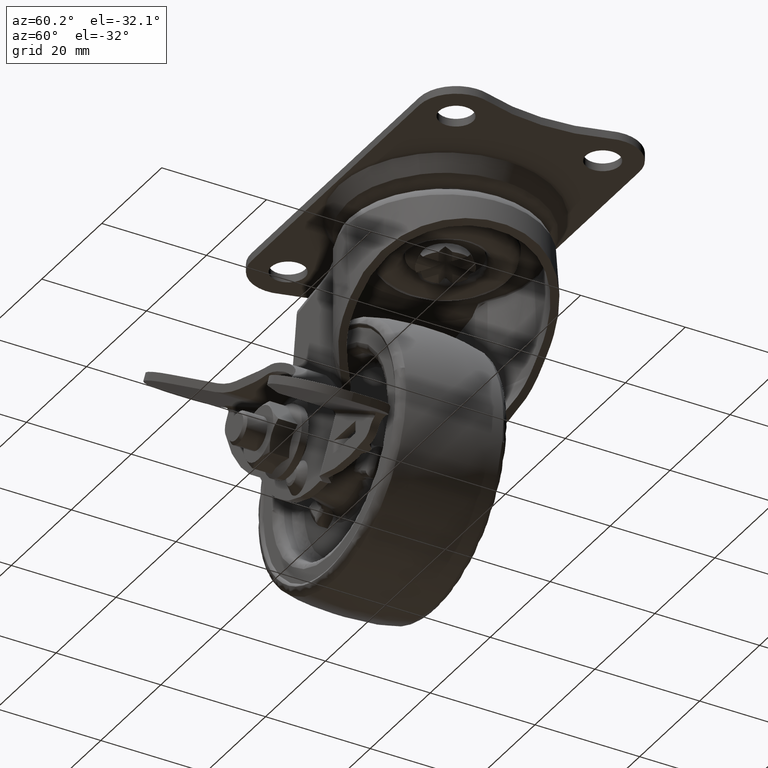
[diagram: clean part render]
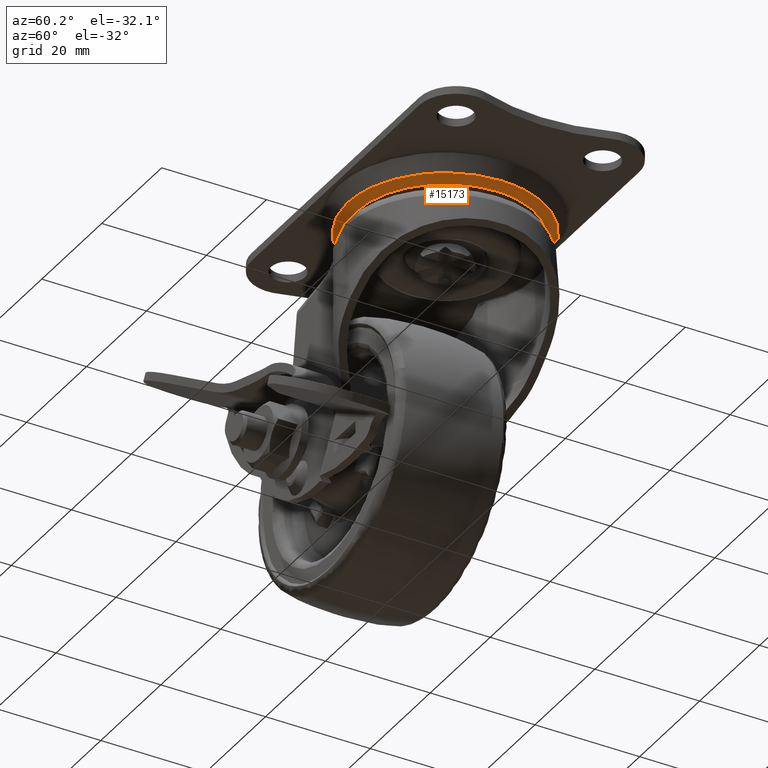
[diagram: same view with one face highlighted and labeled with its STEP entity id]
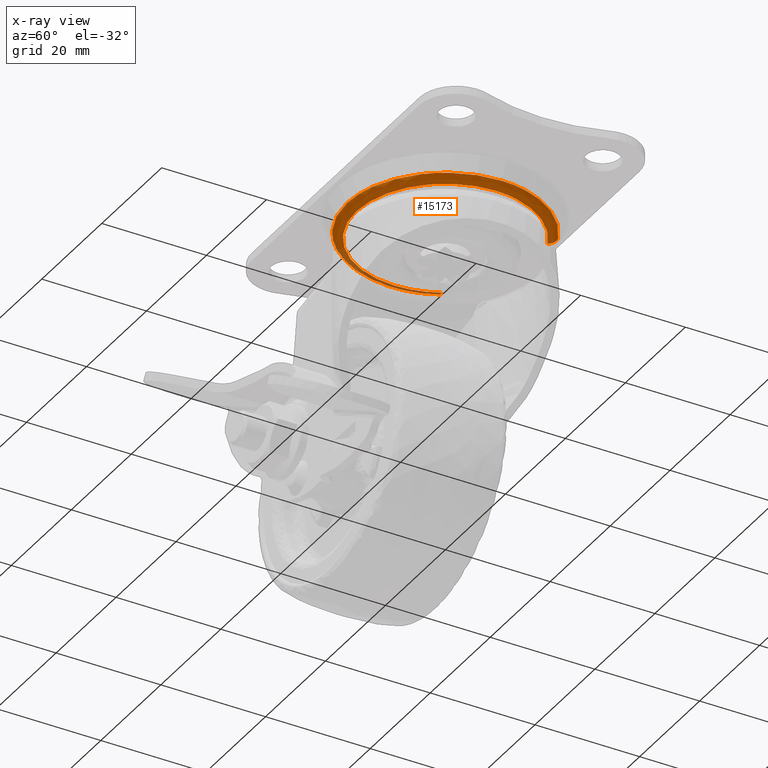
[diagram: x-ray of the same camera — body ghosted, the highlighted face saturated]
A machine part, auxiliary view. The second image highlights one B-rep face of the part: STEP entity #15173.
The next image is the same camera in x-ray: the body ghosted, the highlighted face saturated — about 5% of this face is hidden behind the body in this view.
In plain terms, the highlighted face is a freeform B-spline surface patch.
Its self-contained STEP definition (entity closure, byte-faithful):
#11078=CARTESIAN_POINT('',(-13.446668179705361,-13.086058546007839,-3.243997071950652));
#11079=VERTEX_POINT('',#11078);
#11085=CARTESIAN_POINT('',(-0.000001753686267,-18.763203172549570,-3.243997254316575));
#11086=VERTEX_POINT('',#11085);
#11087=CARTESIAN_POINT('',(-0.000001753686267,-18.763203172549570,-3.243997254316575));
#11088=CARTESIAN_POINT('',(-1.288364051509951,-18.763411241258918,-3.243997236843600));
#11089=CARTESIAN_POINT('',(-3.240293101756210,-18.561301306233851,-3.243997210371199));
#11090=CARTESIAN_POINT('',(-6.112442103431523,-17.800195733370568,-3.243997171418657));
#11091=CARTESIAN_POINT('',(-8.355555626021957,-16.869624756788891,-3.243997140997160));
#11092=CARTESIAN_POINT('',(-10.981840301737630,-15.317714932310031,-3.243997105379060));
#11093=CARTESIAN_POINT('',(-12.548280324266820,-14.009517620238260,-3.243997084134728));
#11094=CARTESIAN_POINT('',(-13.446668179705361,-13.086058546007839,-3.243997071950652));
#11095=B_SPLINE_CURVE_WITH_KNOTS('',3,(#11087,#11088,#11089,#11090,#11091,#11092,#11093,#11094),.UNSPECIFIED.,.F.,.U.,(4,1,1,1,1,4),(0.000000021748560,3.865023599977977,5.856102761578656,8.901263083076529,11.126581826376629,14.991605469402741),.UNSPECIFIED.);
#11096=EDGE_CURVE('',#11086,#11079,#11095,.T.);
#11098=CARTESIAN_POINT('',(13.833684071338419,-12.676235966075639,-3.243997436055670));
#11099=VERTEX_POINT('',#11098);
#11100=CARTESIAN_POINT('',(13.833684071338419,-12.676235966075639,-3.243997436055670));
#11101=CARTESIAN_POINT('',(13.094839923604470,-13.482692059862590,-3.243997426349153));
#11102=CARTESIAN_POINT('',(11.685433166951359,-14.773502992839600,-3.243997407833186));
#11103=CARTESIAN_POINT('',(9.492024406734348,-16.240145640083892,-3.243997379017406));
#11104=CARTESIAN_POINT('',(7.208622939391769,-17.389564503118741,-3.243997349019403));
#11105=CARTESIAN_POINT('',(4.091204729390602,-18.447275146579841,-3.243997308064506));
#11106=CARTESIAN_POINT('',(1.539368802225781,-18.763629082507919,-3.243997274539977));
#11107=CARTESIAN_POINT('',(-0.000001753686267,-18.763203172549570,-3.243997254316575));
#11108=B_SPLINE_CURVE_WITH_KNOTS('',3,(#11100,#11101,#11102,#11103,#11104,#11105,#11106,#11107),.UNSPECIFIED.,.F.,.U.,(4,1,1,1,1,4),(0.000000024532918,3.281198228734509,5.711722164604842,7.899155716953234,10.937324234757220,15.555313215745160),.UNSPECIFIED.);
#11109=EDGE_CURVE('',#11099,#11086,#11108,.T.);
#11223=CARTESIAN_POINT('',(18.763203172549652,0.0,-3.243997254316575));
#11224=VERTEX_POINT('',#11223);
#11225=CARTESIAN_POINT('',(18.763203172549652,0.0,-3.243997254316575));
#11226=CARTESIAN_POINT('',(18.763376595798459,-1.232327751025715,-3.243997271984456));
#11227=CARTESIAN_POINT('',(18.562477704105550,-3.261951469003876,-3.243997301083138));
#11228=CARTESIAN_POINT('',(17.803984552538740,-6.104269707350375,-3.243997341833453));
#11229=CARTESIAN_POINT('',(16.904814878440941,-8.249154062143008,-3.243997372584616));
#11230=CARTESIAN_POINT('',(15.609615729058300,-10.518305569559161,-3.243997405117462));
#11231=CARTESIAN_POINT('',(14.568360981771130,-11.874634913956420,-3.243997424563097));
#11232=CARTESIAN_POINT('',(13.833684071338419,-12.676235966075639,-3.243997436055670));
#11233=B_SPLINE_CURVE_WITH_KNOTS('',3,(#11225,#11226,#11227,#11228,#11229,#11230,#11231,#11232),.UNSPECIFIED.,.F.,.U.,(4,1,1,1,1,4),(0.000000018085068,3.696944107060590,6.089098594676400,8.807422298705355,10.655896799908740,13.917905403781710),.UNSPECIFIED.);
#11234=EDGE_CURVE('',#11224,#11099,#11233,.T.);
#11236=CARTESIAN_POINT('',(7.656007003477729,17.130188266726250,-3.243997254495328));
#11237=VERTEX_POINT('',#11236);
#11238=CARTESIAN_POINT('',(7.656007003477729,17.130188266726250,-3.243997254495328));
#11239=CARTESIAN_POINT('',(8.528531847891804,16.740289741678581,-3.243997254481295));
#11240=CARTESIAN_POINT('',(10.213793949616999,15.826757187052340,-3.243997254454156));
#11241=CARTESIAN_POINT('',(12.279220162023540,14.258247178442771,-3.243997254420921));
#11242=CARTESIAN_POINT('',(14.040535763021740,12.516418785473720,-3.243997254392582));
#11243=CARTESIAN_POINT('',(15.369447946578649,10.837695862460270,-3.243997254371168));
#11244=CARTESIAN_POINT('',(16.817671674395019,8.490541532306049,-3.243997254347920));
#11245=CARTESIAN_POINT('',(17.940070390642759,5.835716845105202,-3.243997254329714));
#11246=CARTESIAN_POINT('',(18.629553250414350,2.754573201219147,-3.243997254318867));
#11247=CARTESIAN_POINT('',(18.763237466600319,0.899453866337064,-3.243997254316523));
#11248=CARTESIAN_POINT('',(18.763203172549652,0.0,-3.243997254316575));
#11249=B_SPLINE_CURVE_WITH_KNOTS('',3,(#11238,#11239,#11240,#11241,#11242,#11243,#11244,#11245,#11246,#11247,#11248),.UNSPECIFIED.,.F.,.U.,(4,1,1,1,1,1,1,1,4),(0.000000038395722,2.867035763578816,5.734073138542646,7.757864862345475,10.287635670231451,12.142715654121110,16.021671523914659,18.888726296421929,21.587095960706680),.UNSPECIFIED.);
#11250=EDGE_CURVE('',#11237,#11224,#11249,.T.);
#11252=CARTESIAN_POINT('',(-16.664284633949212,8.623190298832249,-3.243997254477175));
#11253=VERTEX_POINT('',#11252);
#11269=CARTESIAN_POINT('',(-18.763203172549652,0.0,-3.243997254316575));
#11270=VERTEX_POINT('',#11269);
#11271=CARTESIAN_POINT('',(-18.763203172549652,0.0,-3.243997254316575));
#11272=CARTESIAN_POINT('',(-18.763303526115980,1.073323318645818,-3.243997254316583));
#11273=CARTESIAN_POINT('',(-18.614609686821922,2.799916898484510,-3.243997254327920));
#11274=CARTESIAN_POINT('',(-17.950795377010412,5.716021986022797,-3.243997254378756));
#11275=CARTESIAN_POINT('',(-17.243506410843281,7.504218021687992,-3.243997254432852));
#11276=CARTESIAN_POINT('',(-16.664284633949212,8.623190298832249,-3.243997254477175));
#11277=B_SPLINE_CURVE_WITH_KNOTS('',3,(#11271,#11272,#11273,#11274,#11275,#11276),.UNSPECIFIED.,.F.,.U.,(4,1,1,4),(8.503282E-009,3.219955667064719,5.179910622901696,8.959864652143855),.UNSPECIFIED.);
#11278=EDGE_CURVE('',#11270,#11253,#11277,.T.);
#11280=CARTESIAN_POINT('',(-13.446668179705361,-13.086058546007839,-3.243997071950652));
#11281=CARTESIAN_POINT('',(-14.393725432606630,-12.113247748046399,-3.243997085507630));
#11282=CARTESIAN_POINT('',(-15.934910892676790,-10.140149489936441,-3.243997113004540));
#11283=CARTESIAN_POINT('',(-17.579774989726399,-6.855897125490892,-3.243997158773509));
#11284=CARTESIAN_POINT('',(-18.543994043093250,-3.507233516703289,-3.243997205440148));
#11285=CARTESIAN_POINT('',(-18.763320284628730,-1.169092647780289,-3.243997238024218));
#11286=CARTESIAN_POINT('',(-18.763203172549652,0.0,-3.243997254316575));
#11287=B_SPLINE_CURVE_WITH_KNOTS('',3,(#11280,#11281,#11282,#11283,#11284,#11285,#11286),.UNSPECIFIED.,.F.,.U.,(4,1,1,1,4),(0.000000020730353,4.072955709092906,7.467071141828488,10.974345392101389,14.481610096515411),.UNSPECIFIED.);
#11288=EDGE_CURVE('',#11079,#11270,#11287,.T.);
#15047=CARTESIAN_POINT('',(7.674697010486399,17.172004302330318,-3.152944437897303));
#15048=CARTESIAN_POINT('',(8.166151921782566,16.952357983117505,-3.152944437897303));
#15049=CARTESIAN_POINT('',(8.644240346794636,16.704963776939707,-3.152944437897303));
#15050=CARTESIAN_POINT('',(25.349204123734342,8.060723430145066,-3.152944437897304));
#15051=CARTESIAN_POINT('',(16.704963776939707,-8.644240346794636,-3.152944437897303));
#15052=CARTESIAN_POINT('',(8.060723430145066,-25.349204123734342,-3.152944437897304));
#15053=CARTESIAN_POINT('',(-8.644240346794636,-16.704963776939707,-3.152944437897303));
#15054=CARTESIAN_POINT('',(-25.349204123734324,-8.060723430145078,-3.152944437897304));
#15055=CARTESIAN_POINT('',(-16.704963776939707,8.644240346794643,-3.152944437897303));
#15056=CARTESIAN_POINT('',(7.441380874057663,16.649963407024217,-4.365682554120697));
#15057=CARTESIAN_POINT('',(7.917895213631471,16.436994488953047,-4.365682554120697));
#15058=CARTESIAN_POINT('',(8.381449417417258,16.197121239013835,-4.365682554120697));
#15059=CARTESIAN_POINT('',(24.578570656431079,7.815671821596568,-4.365682554120697));
#15060=CARTESIAN_POINT('',(16.197121239013835,-8.381449417417256,-4.365682554120697));
#15061=CARTESIAN_POINT('',(7.815671821596571,-24.578570656431079,-4.365682554120697));
#15062=CARTESIAN_POINT('',(-8.381449417417256,-16.197121239013835,-4.365682554120697));
#15063=CARTESIAN_POINT('',(-24.578570656431079,-7.815671821596583,-4.365682554120697));
#15064=CARTESIAN_POINT('',(-16.197121239013821,8.381449417417263,-4.365682554120697));
#15065=CARTESIAN_POINT('',(6.895007195619874,15.427461574835400,-4.297404239580902));
#15066=CARTESIAN_POINT('',(7.336534091740956,15.230129621613726,-4.297404239580901));
#15067=CARTESIAN_POINT('',(7.766052433129118,15.007868751976799,-4.297404239580901));
#15068=CARTESIAN_POINT('',(22.773921185105927,7.241816318847685,-4.297404239580902));
#15069=CARTESIAN_POINT('',(15.007868751976799,-7.766052433129115,-4.297404239580901));
#15070=CARTESIAN_POINT('',(7.241816318847686,-22.773921185105927,-4.297404239580902));
#15071=CARTESIAN_POINT('',(-7.766052433129115,-15.007868751976799,-4.297404239580901));
#15072=CARTESIAN_POINT('',(-22.773921185105909,-7.241816318847697,-4.297404239580902));
#15073=CARTESIAN_POINT('',(-15.007868751976799,7.766052433129121,-4.297404239580901));
#15081=(BOUNDED_SURFACE()B_SPLINE_SURFACE(2,2,((#15047,#15056,#15065),(#15048,#15057,#15066),(#15049,#15058,#15067),(#15050,#15059,#15068),(#15051,#15060,#15069),(#15052,#15061,#15070),(#15053,#15062,#15071),(#15054,#15063,#15072),(#15055,#15064,#15073)),.UNSPECIFIED.,.F.,.F.,.U.)B_SPLINE_SURFACE_WITH_KNOTS((3,2,2,2,3),(3,3),(0.0,1.246550070674881,32.410331557644902,63.574113044614933,94.737894531584956),(0.0,2.433449396145581),.UNSPECIFIED.)GEOMETRIC_REPRESENTATION_ITEM()RATIONAL_B_SPLINE_SURFACE(((0.903444718542608,0.750584197896223,0.903842508489081),(0.913406545380157,0.758860509277515,0.913808721554678),(0.924234617131715,0.767856499163334,0.924641560945023),(0.653532565181188,0.542956537536556,0.653820317911140),(0.924234617131715,0.767856499163334,0.924641560945023),(0.653532565181188,0.542956537536556,0.653820317911140),(0.924234617131715,0.767856499163334,0.924641560945023),(0.653532565181188,0.542956537536556,0.653820317911140),(0.924234617131715,0.767856499163334,0.924641560945023)))REPRESENTATION_ITEM('')SURFACE());
#15082=ORIENTED_EDGE('',*,*,#11250,.T.);
#15083=ORIENTED_EDGE('',*,*,#11234,.T.);
#15084=ORIENTED_EDGE('',*,*,#11109,.T.);
#15085=ORIENTED_EDGE('',*,*,#11096,.T.);
#15086=ORIENTED_EDGE('',*,*,#11288,.T.);
#15087=ORIENTED_EDGE('',*,*,#11278,.T.);
#15088=CARTESIAN_POINT('',(-15.098324101914081,7.812859944776915,-4.299999201334089));
#15089=VERTEX_POINT('',#15088);
#15090=CARTESIAN_POINT('',(-16.664284633949212,8.623190298832249,-3.243997254477175));
#15091=CARTESIAN_POINT('',(-16.542027885098658,8.559926664424493,-3.501942046313316));
#15092=CARTESIAN_POINT('',(-16.261426727049290,8.414725280920267,-3.867912255930342));
#15093=CARTESIAN_POINT('',(-15.697255644165240,8.122786279913127,-4.219682274280659));
#15094=CARTESIAN_POINT('',(-15.318014023347271,7.926541872363065,-4.300226187778706));
#15095=CARTESIAN_POINT('',(-15.098324101914081,7.812859944776915,-4.299999201334089));
#15096=B_SPLINE_CURVE_WITH_KNOTS('',3,(#15090,#15091,#15092,#15093,#15094,#15095),.UNSPECIFIED.,.F.,.U.,(4,1,1,4),(0.000000098585677,0.876910192600521,1.416507622670016,2.158504412008096),.UNSPECIFIED.);
#15097=EDGE_CURVE('',#11253,#15089,#15096,.T.);
#15098=ORIENTED_EDGE('',*,*,#15097,.T.);
#15099=CARTESIAN_POINT('',(-17.000005033948849,0.0,-4.299999201334090));
#15100=VERTEX_POINT('',#15099);
#15101=CARTESIAN_POINT('',(-17.000005033948849,0.0,-4.299999201334090));
#15102=CARTESIAN_POINT('',(-17.000164956039530,1.141590355313513,-4.299999201334102));
#15103=CARTESIAN_POINT('',(-16.803339580752962,3.086438087569958,-4.299999201334053));
#15104=CARTESIAN_POINT('',(-16.073589931409991,5.699206884445320,-4.299999201334146));
#15105=CARTESIAN_POINT('',(-15.448115133940981,7.136955133006354,-4.299999201334035));
#15106=CARTESIAN_POINT('',(-15.098324101914081,7.812859944776915,-4.299999201334089));
#15107=B_SPLINE_CURVE_WITH_KNOTS('',3,(#15101,#15102,#15103,#15104,#15105,#15106),.UNSPECIFIED.,.F.,.U.,(4,1,1,4),(8.793506E-009,3.424746681451146,5.834737156670521,8.117896650929223),.UNSPECIFIED.);
#15108=EDGE_CURVE('',#15100,#15089,#15107,.T.);
#15109=ORIENTED_EDGE('',*,*,#15108,.F.);
#15110=CARTESIAN_POINT('',(-0.000000907277029,-17.000005033948831,-4.299999201334090));
#15111=VERTEX_POINT('',#15110);
#15112=CARTESIAN_POINT('',(-0.000000907277029,-17.000005033948831,-4.299999201334090));
#15113=CARTESIAN_POINT('',(-0.660626285726565,-17.000010339816850,-4.299999201334084));
#15114=CARTESIAN_POINT('',(-2.225296319245988,-16.908738899178658,-4.299999201334104));
#15115=CARTESIAN_POINT('',(-4.346346277116583,-16.486824931172571,-4.299999201334069));
#15116=CARTESIAN_POINT('',(-6.587544096571205,-15.723491470983291,-4.299999201334139));
#15117=CARTESIAN_POINT('',(-8.496354477607827,-14.784585115648650,-4.299999201333995));
#15118=CARTESIAN_POINT('',(-10.345947969676260,-13.540462400369741,-4.299999201334148));
#15119=CARTESIAN_POINT('',(-12.060533209394301,-12.061501381778490,-4.299999201334045));
#15120=CARTESIAN_POINT('',(-13.804403277141640,-10.064883980855530,-4.299999201334141));
#15121=CARTESIAN_POINT('',(-15.182621635759229,-7.797103362051515,-4.299999201333990));
#15122=CARTESIAN_POINT('',(-16.249106233481491,-5.222337576064424,-4.299999201334139));
#15123=CARTESIAN_POINT('',(-16.861559729726601,-2.712085593777775,-4.299999201334070));
#15124=CARTESIAN_POINT('',(-17.000029754640430,-0.834478776913061,-4.299999201334096));
#15125=CARTESIAN_POINT('',(-17.000005033948849,0.0,-4.299999201334090));
#15126=B_SPLINE_CURVE_WITH_KNOTS('',3,(#15112,#15113,#15114,#15115,#15116,#15117,#15118,#15119,#15120,#15121,#15122,#15123,#15124,#15125),.UNSPECIFIED.,.F.,.U.,(4,1,1,1,1,1,1,1,1,1,1,4),(0.000000082418413,1.981884104949131,4.693985999579137,6.467274608194515,9.075066238960318,11.056967843700111,13.143191544942949,15.855241513588620,18.984576308588320,21.070803993987891,24.200138788710859,26.703586841579789),.UNSPECIFIED.);
#15127=EDGE_CURVE('',#15111,#15100,#15126,.T.);
#15128=ORIENTED_EDGE('',*,*,#15127,.F.);
#15129=CARTESIAN_POINT('',(17.000005033948849,0.0,-4.299999201334090));
#15130=VERTEX_POINT('',#15129);
#15131=CARTESIAN_POINT('',(17.000005033948849,0.0,-4.299999201334090));
#15132=CARTESIAN_POINT('',(17.000325148710999,-1.390836821562543,-4.299999201334083));
#15133=CARTESIAN_POINT('',(16.725350197682641,-3.615947439547790,-4.299999201334101));
#15134=CARTESIAN_POINT('',(15.653529502534210,-6.860286404710427,-4.299999201334082));
#15135=CARTESIAN_POINT('',(14.320085209718499,-9.318684828144306,-4.299999201334074));
#15136=CARTESIAN_POINT('',(12.483233312677500,-11.642656875261711,-4.299999201334059));
#15137=CARTESIAN_POINT('',(10.508371672664330,-13.466035513639831,-4.299999201334173));
#15138=CARTESIAN_POINT('',(8.227770093509527,-14.949655753100529,-4.299999201333969));
#15139=CARTESIAN_POINT('',(6.006280762842344,-15.958898516380611,-4.299999201334126));
#15140=CARTESIAN_POINT('',(3.303066483124586,-16.769950309523200,-4.299999201334066));
#15141=CARTESIAN_POINT('',(1.286520487667777,-17.000249971533432,-4.299999201334107));
#15142=CARTESIAN_POINT('',(-0.000000907277029,-17.000005033948831,-4.299999201334090));
#15143=B_SPLINE_CURVE_WITH_KNOTS('',3,(#15131,#15132,#15133,#15134,#15135,#15136,#15137,#15138,#15139,#15140,#15141,#15142),.UNSPECIFIED.,.F.,.U.,(4,1,1,1,1,1,1,1,1,4),(0.000000082353150,4.172416917594987,6.675897707671805,10.222496112963681,12.517351842417041,15.542286157368540,18.254391122555798,20.653560588715170,22.844093433169981,26.703587864294061),.UNSPECIFIED.);
#15144=EDGE_CURVE('',#15130,#15111,#15143,.T.);
#15145=ORIENTED_EDGE('',*,*,#15144,.F.);
#15146=CARTESIAN_POINT('',(6.936563891507976,15.520446275716161,-4.299999201334090));
#15147=VERTEX_POINT('',#15146);
#15148=CARTESIAN_POINT('',(6.936563891507976,15.520446275716161,-4.299999201334090));
#15149=CARTESIAN_POINT('',(7.820113581204061,15.125652662045191,-4.299999201334106));
#15150=CARTESIAN_POINT('',(9.206395824569176,14.357884630343600,-4.299999201334074));
#15151=CARTESIAN_POINT('',(11.244435238254050,12.824618132213210,-4.299999201334093));
#15152=CARTESIAN_POINT('',(12.908965956060159,11.163666807916540,-4.299999201334106));
#15153=CARTESIAN_POINT('',(14.601703105087800,8.859903930662311,-4.299999201334083));
#15154=CARTESIAN_POINT('',(15.962423338714050,6.164071888563548,-4.299999201334071));
#15155=CARTESIAN_POINT('',(16.821278618824429,3.055988313835559,-4.299999201334097));
#15156=CARTESIAN_POINT('',(17.000063423978830,0.967737859991130,-4.299999201334084));
#15157=CARTESIAN_POINT('',(17.000005033948849,0.0,-4.299999201334090));
#15158=B_SPLINE_CURVE_WITH_KNOTS('',3,(#15148,#15149,#15150,#15151,#15152,#15153,#15154,#15155,#15156,#15157),.UNSPECIFIED.,.F.,.U.,(4,1,1,1,1,1,1,4),(0.000000046736808,2.903213754485943,4.736831703925944,7.640052724021869,9.932042273392685,13.293690152640339,16.655319909204760,19.558533616953660),.UNSPECIFIED.);
#15159=EDGE_CURVE('',#15147,#15130,#15158,.T.);
#15160=ORIENTED_EDGE('',*,*,#15159,.F.);
#15161=CARTESIAN_POINT('',(7.656007003477729,17.130188266726250,-3.243997254495328));
#15162=CARTESIAN_POINT('',(7.610602555985389,17.028596571036470,-3.452251126957647));
#15163=CARTESIAN_POINT('',(7.523864075764465,16.834520664942829,-3.720838225797470));
#15164=CARTESIAN_POINT('',(7.351629408159221,16.449148462284420,-4.041226550338822));
#15165=CARTESIAN_POINT('',(7.170498848141413,16.043871848374231,-4.244813649651761));
#15166=CARTESIAN_POINT('',(7.014547362936436,15.694932995350280,-4.300071133522517));
#15167=CARTESIAN_POINT('',(6.936563891507976,15.520446275716161,-4.299999201334090));
#15168=B_SPLINE_CURVE_WITH_KNOTS('',3,(#15161,#15162,#15163,#15164,#15165,#15166,#15167),.UNSPECIFIED.,.F.,.U.,(4,1,1,1,4),(0.000000098586610,0.708262801452191,1.011809851437674,1.585151384965588,2.158504411494260),.UNSPECIFIED.);
#15169=EDGE_CURVE('',#11237,#15147,#15168,.T.);
#15170=ORIENTED_EDGE('',*,*,#15169,.F.);
#15171=EDGE_LOOP('',(#15082,#15083,#15084,#15085,#15086,#15087,#15098,#15109,#15128,#15145,#15160,#15170));
#15172=FACE_OUTER_BOUND('',#15171,.T.);
#15173=ADVANCED_FACE('',(#15172),#15081,.T.);